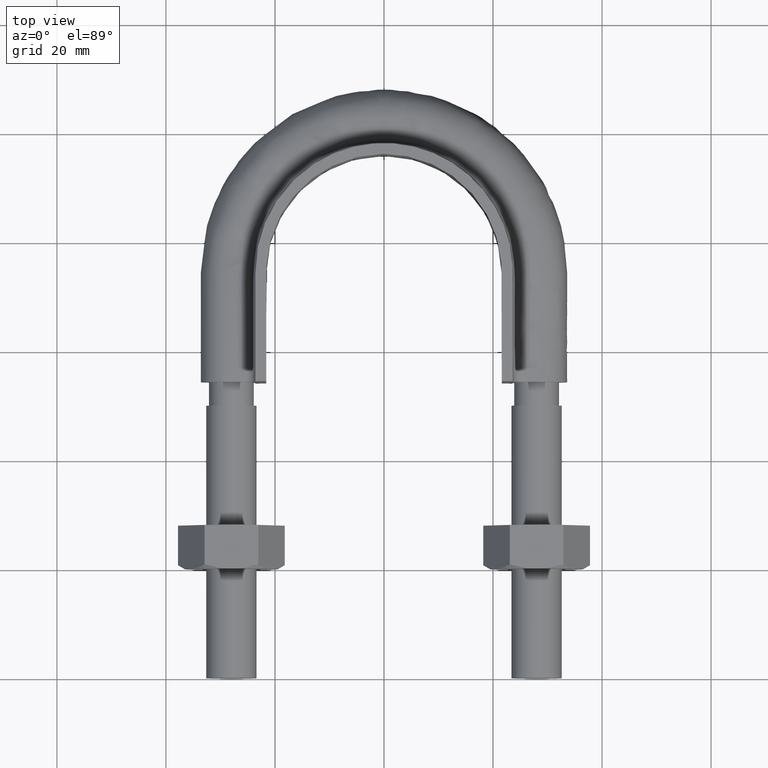
[diagram: clean part render]
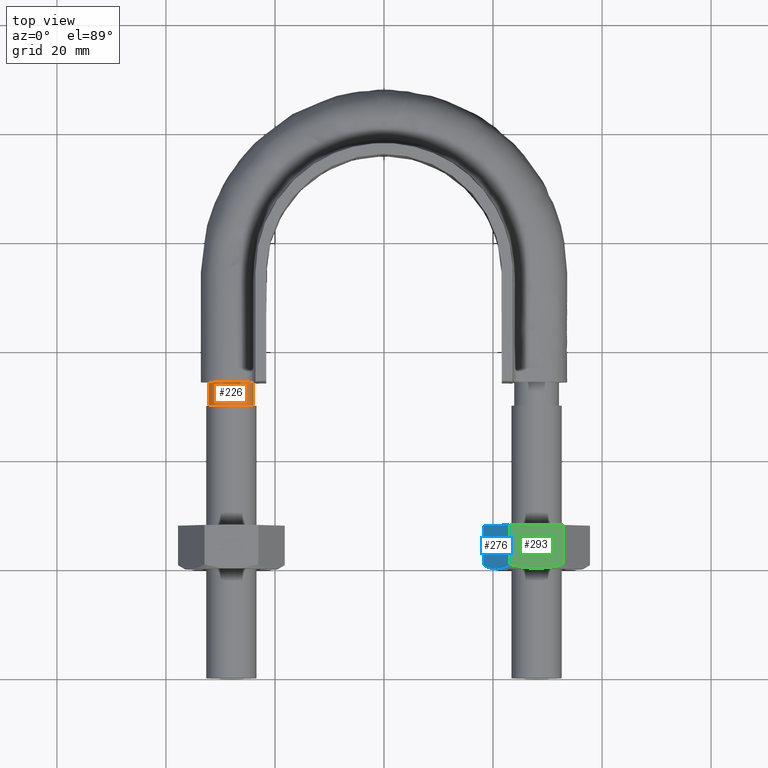
[diagram: same view with three faces highlighted in distinct colors, each labeled with its STEP entity id]
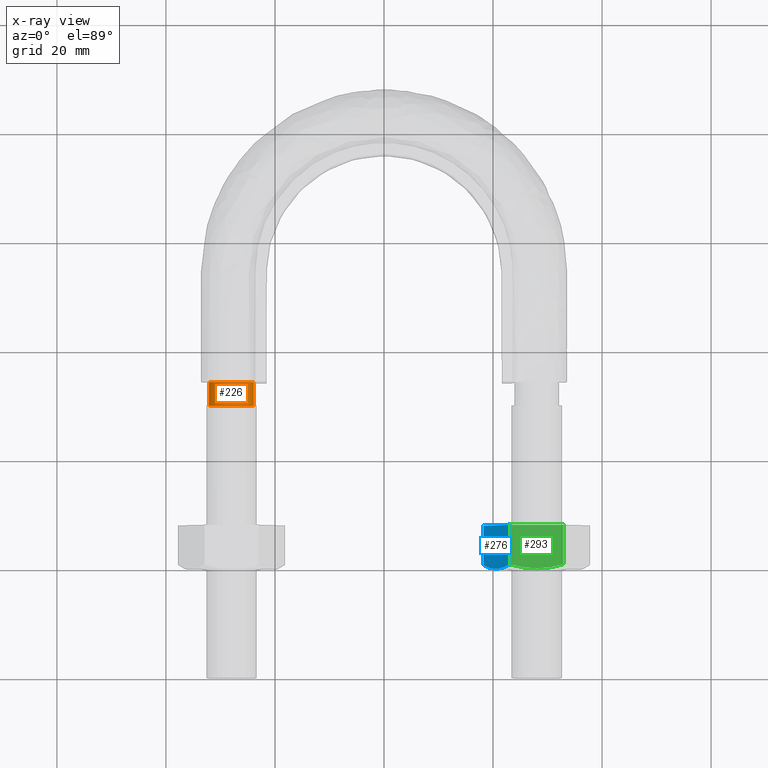
[diagram: x-ray of the same camera — body ghosted, the three highlighted faces saturated]
A machine part, top view with three faces highlighted in distinct colors.
The next image is the same camera in x-ray (body ghosted, the three faces saturated) — at least one of them is partly hidden behind the body in this view.
Their STEP definitions:

[orange] entity #226 — the highlighted cylindrical surface (bore or boss wall) has radius 4.1 mm, axis along (0, 1, 0).
#226 = ADVANCED_FACE( '', ( #313, #314 ), #315, .T. );
#313 = FACE_OUTER_BOUND( '', #1161, .T. );
#314 = FACE_OUTER_BOUND( '', #1162, .T. );
#315 = CYLINDRICAL_SURFACE( '', #1163, 4.10000000000000 );
#1161 = EDGE_LOOP( '', ( #1523, #1524, #1525, #1526, #1527, #1528, #1529 ) );
#1162 = EDGE_LOOP( '', ( #1530 ) );
#1163 = AXIS2_PLACEMENT_3D( '', #1531, #1532, #1533 );
#1523 = ORIENTED_EDGE( '', *, *, #2017, .T. );
#1524 = ORIENTED_EDGE( '', *, *, #2018, .T. );
#1525 = ORIENTED_EDGE( '', *, *, #2019, .T. );
#1526 = ORIENTED_EDGE( '', *, *, #2020, .T. );
#1527 = ORIENTED_EDGE( '', *, *, #2021, .T. );
#1528 = ORIENTED_EDGE( '', *, *, #2022, .T. );
#1529 = ORIENTED_EDGE( '', *, *, #2023, .T. );
#1530 = ORIENTED_EDGE( '', *, *, #2024, .T. );
#1531 = CARTESIAN_POINT( '', ( -28.0000000000000, 54.3000000000000, 2.02060048380692E-015 ) );
#1532 = DIRECTION( '', ( 2.44921270764475E-016, 1.00000000000000, 6.12303176911189E-017 ) );
#1533 = DIRECTION( '', ( 1.00000000000000, -2.44921270764475E-016, -7.49830360911069E-033 ) );
#2017 = EDGE_CURVE( '', #2179, #2180, #2181, .T. );
#2018 = EDGE_CURVE( '', #2180, #2182, #2183, .T. );
#2019 = EDGE_CURVE( '', #2182, #2184, #2185, .T. );
#2020 = EDGE_CURVE( '', #2184, #2186, #2187, .T. );
#2021 = EDGE_CURVE( '', #2186, #2188, #2189, .T. );
#2022 = EDGE_CURVE( '', #2188, #2190, #2191, .T. );
#2023 = EDGE_CURVE( '', #2190, #2179, #2192, .T. );
#2024 = EDGE_CURVE( '', #2193, #2193, #2194, .T. );
#2179 = VERTEX_POINT( '', #2630 );
#2180 = VERTEX_POINT( '', #2631 );
#2181 = CIRCLE( '', #2632, 4.10000000000000 );
#2182 = VERTEX_POINT( '', #2633 );
#2183 = CIRCLE( '', #2634, 4.10000000000000 );
#2184 = VERTEX_POINT( '', #2635 );
#2185 = CIRCLE( '', #2636, 4.10000000000000 );
#2186 = VERTEX_POINT( '', #2637 );
#2187 = CIRCLE( '', #2638, 4.10000000000000 );
#2188 = VERTEX_POINT( '', #2639 );
#2189 = CIRCLE( '', #2640, 4.10000000000000 );
#2190 = VERTEX_POINT( '', #2641 );
#2191 = CIRCLE( '', #2642, 4.10000000000000 );
#2192 = CIRCLE( '', #2643, 4.10000000000000 );
#2193 = VERTEX_POINT( '', #2644 );
#2194 = CIRCLE( '', #2645, 4.10000000000000 );
#2630 = CARTESIAN_POINT( '', ( -23.9000000000000, 54.3000000000000, 5.34345494379736E-014 ) );
#2631 = CARTESIAN_POINT( '', ( -25.4436918124004, 54.3000000000000, 3.20550907813583 ) );
#2632 = AXIS2_PLACEMENT_3D( '', #3060, #3061, #3062 );
#2633 = CARTESIAN_POINT( '', ( -28.9123358292367, 54.3000000000000, 3.99720443994186 ) );
#2634 = AXIS2_PLACEMENT_3D( '', #3063, #3064, #3065 );
#2635 = CARTESIAN_POINT( '', ( -31.6939723584001, 54.3000000000000, 1.77892333038169 ) );
#2636 = AXIS2_PLACEMENT_3D( '', #3066, #3067, #3068 );
#2637 = CARTESIAN_POINT( '', ( -31.6939723583899, 54.3000000000000, -1.77892333040284 ) );
#2638 = AXIS2_PLACEMENT_3D( '', #3069, #3070, #3071 );
#2639 = CARTESIAN_POINT( '', ( -28.9123358292208, 54.3000000000000, -3.99720443994548 ) );
#2640 = AXIS2_PLACEMENT_3D( '', #3072, #3073, #3074 );
#2641 = CARTESIAN_POINT( '', ( -25.4436918123791, 54.3000000000000, -3.20550907811886 ) );
#2642 = AXIS2_PLACEMENT_3D( '', #3075, #3076, #3077 );
#2643 = AXIS2_PLACEMENT_3D( '', #3078, #3079, #3080 );
#2644 = CARTESIAN_POINT( '', ( -23.9000000000000, 50.0000000000000, 1.75731011773511E-015 ) );
#2645 = AXIS2_PLACEMENT_3D( '', #3081, #3082, #3083 );
#3060 = CARTESIAN_POINT( '', ( -28.0000000000000, 54.3000000000000, 2.02060048380692E-015 ) );
#3061 = DIRECTION( '', ( -2.44921270764475E-016, -1.00000000000000, -6.12303176911189E-017 ) );
#3062 = DIRECTION( '', ( 1.00000000000000, -2.44921270764475E-016, -7.49830360911069E-033 ) );
#3063 = CARTESIAN_POINT( '', ( -28.0000000000000, 54.3000000000000, 2.02060048380692E-015 ) );
#3064 = DIRECTION( '', ( -2.44921270764475E-016, -1.00000000000000, -6.12303176911189E-017 ) );
#3065 = DIRECTION( '', ( 1.00000000000000, -2.44921270764475E-016, -7.49830360911069E-033 ) );
#3066 = CARTESIAN_POINT( '', ( -28.0000000000000, 54.3000000000000, 2.02060048380692E-015 ) );
#3067 = DIRECTION( '', ( -2.44921270764475E-016, -1.00000000000000, -6.12303176911189E-017 ) );
#3068 = DIRECTION( '', ( 1.00000000000000, -2.44921270764475E-016, -7.49830360911069E-033 ) );
#3069 = CARTESIAN_POINT( '', ( -28.0000000000000, 54.3000000000000, 2.02060048380692E-015 ) );
#3070 = DIRECTION( '', ( -2.44921270764475E-016, -1.00000000000000, -6.12303176911189E-017 ) );
#3071 = DIRECTION( '', ( 1.00000000000000, -2.44921270764475E-016, -7.49830360911069E-033 ) );
#3072 = CARTESIAN_POINT( '', ( -28.0000000000000, 54.3000000000000, 2.02060048380692E-015 ) );
#3073 = DIRECTION( '', ( -2.44921270764475E-016, -1.00000000000000, -6.12303176911189E-017 ) );
#3074 = DIRECTION( '', ( 1.00000000000000, -2.44921270764475E-016, -7.49830360911069E-033 ) );
#3075 = CARTESIAN_POINT( '', ( -28.0000000000000, 54.3000000000000, 2.02060048380692E-015 ) );
#3076 = DIRECTION( '', ( -2.44921270764475E-016, -1.00000000000000, -6.12303176911189E-017 ) );
#3077 = DIRECTION( '', ( 1.00000000000000, -2.44921270764475E-016, -7.49830360911069E-033 ) );
#3078 = CARTESIAN_POINT( '', ( -28.0000000000000, 54.3000000000000, 2.02060048380692E-015 ) );
#3079 = DIRECTION( '', ( -2.44921270764475E-016, -1.00000000000000, -6.12303176911189E-017 ) );
#3080 = DIRECTION( '', ( 1.00000000000000, -2.44921270764475E-016, -7.49830360911069E-033 ) );
#3081 = CARTESIAN_POINT( '', ( -28.0000000000000, 50.0000000000000, 1.75731011773511E-015 ) );
#3082 = DIRECTION( '', ( 2.44921270764475E-016, 1.00000000000000, 6.12303176911189E-017 ) );
#3083 = DIRECTION( '', ( 1.00000000000000, -2.44921270764475E-016, 0.000000000000000 ) );

[blue] entity #276 — the highlighted planar face has unit normal (0.866, -0, -0.5).
#276 = ADVANCED_FACE( '', ( #425 ), #426, .F. );
#425 = FACE_OUTER_BOUND( '', #1422, .T. );
#426 = PLANE( '', #1423 );
#1422 = EDGE_LOOP( '', ( #1858, #1859, #1860, #1861, #1862 ) );
#1423 = AXIS2_PLACEMENT_3D( '', #1863, #1864, #1865 );
#1858 = ORIENTED_EDGE( '', *, *, #2118, .F. );
#1859 = ORIENTED_EDGE( '', *, *, #2117, .F. );
#1860 = ORIENTED_EDGE( '', *, *, #2114, .F. );
#1861 = ORIENTED_EDGE( '', *, *, #2119, .F. );
#1862 = ORIENTED_EDGE( '', *, *, #2120, .F. );
#1863 = CARTESIAN_POINT( '', ( 18.1850454237764, 28.0000000000000, 2.44921270764476E-016 ) );
#1864 = DIRECTION( '', ( 0.866025403784439, -1.81492883563643E-016, -0.500000000000000 ) );
#1865 = DIRECTION( '', ( -2.13491744991808E-032, -1.00000000000000, 3.62985767127286E-016 ) );
#2114 = EDGE_CURVE( '', #2339, #2334, #2341, .F. );
#2117 = EDGE_CURVE( '', #2334, #2342, #2346, .T. );
#2118 = EDGE_CURVE( '', #2342, #2347, #2348, .T. );
#2119 = EDGE_CURVE( '', #2349, #2339, #2350, .T. );
#2120 = EDGE_CURVE( '', #2347, #2349, #2351, .T. );
#2334 = VERTEX_POINT( '', #2925 );
#2339 = VERTEX_POINT( '', #2931 );
#2341 = LINE( '', #2933, #2934 );
#2342 = VERTEX_POINT( '', #2935 );
#2346 = B_SPLINE_CURVE_WITH_KNOTS( '', 3, ( #2944, #2945, #2946, #2947, #2948, #2949 ), .UNSPECIFIED., .F., .F., ( 4, 2, 4 ), ( 9.34177181294034E-018, 0.00246745482903608, 0.00493490965807216 ), .UNSPECIFIED. );
#2347 = VERTEX_POINT( '', #2950 );
#2348 = B_SPLINE_CURVE_WITH_KNOTS( '', 3, ( #2951, #2952, #2953, #2954, #2955, #2956 ), .UNSPECIFIED., .F., .F., ( 4, 2, 4 ), ( 1.73472347597681E-018, 0.00246745482903607, 0.00493490965807215 ), .UNSPECIFIED. );
#2349 = VERTEX_POINT( '', #2957 );
#2350 = LINE( '', #2958, #2959 );
#2351 = LINE( '', #2960, #2961 );
#2925 = CARTESIAN_POINT( '', ( 23.0775337474838, 20.7505553499465, 8.47403835209865 ) );
#2931 = CARTESIAN_POINT( '', ( 23.0775337474838, 28.0000000000000, 8.47403835209865 ) );
#2933 = CARTESIAN_POINT( '', ( 23.0775337474838, 28.0000000000000, 8.47403835209865 ) );
#2934 = VECTOR( '', #3223, 1000.00000000000 );
#2935 = CARTESIAN_POINT( '', ( 20.6387840678323, 20.0000000000000, 4.25000000000000 ) );
#2944 = CARTESIAN_POINT( '', ( 23.0775337474838, 20.7505553499465, 8.47403835209866 ) );
#2945 = CARTESIAN_POINT( '', ( 22.6790699211710, 20.5215585493657, 7.78387875994655 ) );
#2946 = CARTESIAN_POINT( '', ( 22.2775056556637, 20.3328582843706, 7.08834904958399 ) );
#2947 = CARTESIAN_POINT( '', ( 21.4654371916751, 20.0716504305290, 5.68180521073132 ) );
#2948 = CARTESIAN_POINT( '', ( 21.0548670429277, 20.0000000000000, 4.97067685302958 ) );
#2949 = CARTESIAN_POINT( '', ( 20.6387840678323, 20.0000000000000, 4.25000000000000 ) );
#2950 = CARTESIAN_POINT( '', ( 18.2000343881809, 20.7505553499465, 0.0259616479013430 ) );
#2951 = CARTESIAN_POINT( '', ( 20.6387840678323, 20.0000000000000, 4.25000000000000 ) );
#2952 = CARTESIAN_POINT( '', ( 20.2227010927369, 20.0000000000000, 3.52932314697042 ) );
#2953 = CARTESIAN_POINT( '', ( 19.8121309439895, 20.0716504305290, 2.81819478926868 ) );
#2954 = CARTESIAN_POINT( '', ( 19.0000624800009, 20.3328582843706, 1.41165095041600 ) );
#2955 = CARTESIAN_POINT( '', ( 18.5984982144937, 20.5215585493656, 0.716121240053481 ) );
#2956 = CARTESIAN_POINT( '', ( 18.2000343881809, 20.7505553499465, 0.0259616479013730 ) );
#2957 = CARTESIAN_POINT( '', ( 18.2000343881808, 28.0000000000000, 0.0259616479013113 ) );
#2958 = CARTESIAN_POINT( '', ( 25.5387840678323, 28.0000000000000, 12.7370489570875 ) );
#2959 = VECTOR( '', #3227, 1000.00000000000 );
#2960 = CARTESIAN_POINT( '', ( 18.2000343881808, 28.0000000000000, 0.0259616479013148 ) );
#2961 = VECTOR( '', #3228, 1000.00000000000 );
#3223 = DIRECTION( '', ( 2.44921270764475E-016, 1.00000000000000, 6.12303176911189E-017 ) );
#3227 = DIRECTION( '', ( 0.500000000000000, -1.75487645984538E-016, 0.866025403784439 ) );
#3228 = DIRECTION( '', ( 2.44921270764475E-016, 1.00000000000000, 6.12303176911189E-017 ) );

[green] entity #293 — the highlighted planar face has unit normal (0, 0, -1).
#293 = ADVANCED_FACE( '', ( #464 ), #465, .F. );
#464 = FACE_OUTER_BOUND( '', #1461, .T. );
#465 = PLANE( '', #1462 );
#1461 = EDGE_LOOP( '', ( #1988, #1989, #1990, #1991, #1992 ) );
#1462 = AXIS2_PLACEMENT_3D( '', #1993, #1994, #1995 );
#1988 = ORIENTED_EDGE( '', *, *, #2116, .F. );
#1989 = ORIENTED_EDGE( '', *, *, #2135, .F. );
#1990 = ORIENTED_EDGE( '', *, *, #2142, .F. );
#1991 = ORIENTED_EDGE( '', *, *, #2150, .F. );
#1992 = ORIENTED_EDGE( '', *, *, #2112, .F. );
#1993 = CARTESIAN_POINT( '', ( 23.0925227118882, 28.0000000000000, 8.50000000000000 ) );
#1994 = DIRECTION( '', ( 5.55111512312578E-017, 6.12303176911189E-017, -1.00000000000000 ) );
#1995 = DIRECTION( '', ( -1.00000000000000, 0.000000000000000, -5.55111512312578E-017 ) );
#2112 = EDGE_CURVE( '', #2335, #2337, #2338, .T. );
#2116 = EDGE_CURVE( '', #2343, #2335, #2345, .T. );
#2135 = EDGE_CURVE( '', #2374, #2343, #2376, .T. );
#2142 = EDGE_CURVE( '', #2385, #2374, #2388, .F. );
#2150 = EDGE_CURVE( '', #2337, #2385, #2399, .T. );
#2335 = VERTEX_POINT( '', #2926 );
#2337 = VERTEX_POINT( '', #2928 );
#2338 = LINE( '', #2929, #2930 );
#2343 = VERTEX_POINT( '', #2936 );
#2345 = B_SPLINE_CURVE_WITH_KNOTS( '', 3, ( #2938, #2939, #2940, #2941, #2942, #2943 ), .UNSPECIFIED., .F., .F., ( 4, 2, 4 ), ( 3.46944695195361E-018, 0.00246745482903606, 0.00493490965807211 ), .UNSPECIFIED. );
#2374 = VERTEX_POINT( '', #3002 );
#2376 = B_SPLINE_CURVE_WITH_KNOTS( '', 3, ( #3004, #3005, #3006, #3007, #3008, #3009 ), .UNSPECIFIED., .F., .F., ( 4, 2, 4 ), ( 6.93889390390723E-018, 0.00246745482903607, 0.00493490965807212 ), .UNSPECIFIED. );
#2385 = VERTEX_POINT( '', #3025 );
#2388 = LINE( '', #3028, #3029 );
#2399 = LINE( '', #3044, #3045 );
#2926 = CARTESIAN_POINT( '', ( 23.1225006406971, 20.7505553499465, 8.50000000000000 ) );
#2928 = CARTESIAN_POINT( '', ( 23.1225006406971, 28.0000000000000, 8.50000000000000 ) );
#2929 = CARTESIAN_POINT( '', ( 23.1225006406971, 28.0000000000000, 8.50000000000000 ) );
#2930 = VECTOR( '', #3219, 1000.00000000000 );
#2936 = CARTESIAN_POINT( '', ( 28.0000000000000, 20.0000000000000, 8.50000000000000 ) );
#2938 = CARTESIAN_POINT( '', ( 28.0000000000000, 20.0000000000000, 8.50000000000000 ) );
#2939 = CARTESIAN_POINT( '', ( 27.1678340498093, 20.0000000000000, 8.50000000000000 ) );
#2940 = CARTESIAN_POINT( '', ( 26.3466937523143, 20.0716504305290, 8.50000000000000 ) );
#2941 = CARTESIAN_POINT( '', ( 24.7225568243371, 20.3328582843707, 8.50000000000000 ) );
#2942 = CARTESIAN_POINT( '', ( 23.9194282933227, 20.5215585493657, 8.50000000000000 ) );
#2943 = CARTESIAN_POINT( '', ( 23.1225006406971, 20.7505553499465, 8.50000000000000 ) );
#3002 = CARTESIAN_POINT( '', ( 32.8774993593029, 20.7505553499465, 8.50000000000000 ) );
#3004 = CARTESIAN_POINT( '', ( 32.8774993593029, 20.7505553499465, 8.50000000000000 ) );
#3005 = CARTESIAN_POINT( '', ( 32.0805717066773, 20.5215585493657, 8.50000000000000 ) );
#3006 = CARTESIAN_POINT( '', ( 31.2774431756629, 20.3328582843707, 8.50000000000000 ) );
#3007 = CARTESIAN_POINT( '', ( 29.6533062476857, 20.0716504305290, 8.50000000000000 ) );
#3008 = CARTESIAN_POINT( '', ( 28.8321659501907, 20.0000000000000, 8.50000000000000 ) );
#3009 = CARTESIAN_POINT( '', ( 28.0000000000000, 20.0000000000000, 8.50000000000000 ) );
#3025 = CARTESIAN_POINT( '', ( 32.8774993593029, 28.0000000000000, 8.50000000000000 ) );
#3028 = CARTESIAN_POINT( '', ( 32.8774993593029, 28.0000000000000, 8.50000000000000 ) );
#3029 = VECTOR( '', #3267, 1000.00000000000 );
#3044 = CARTESIAN_POINT( '', ( 32.9000000000000, 28.0000000000000, 8.50000000000000 ) );
#3045 = VECTOR( '', #3281, 1000.00000000000 );
#3219 = DIRECTION( '', ( 2.44921270764475E-016, 1.00000000000000, 6.12303176911189E-017 ) );
#3267 = DIRECTION( '', ( 2.44921270764475E-016, 1.00000000000000, 6.12303176911189E-017 ) );
#3281 = DIRECTION( '', ( 1.00000000000000, -2.44921270764475E-016, 5.55111512312578E-017 ) );